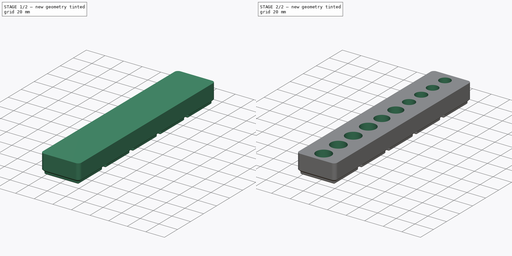
[diagram: build sequence overview — one tinted view per stage of 2, left to right]
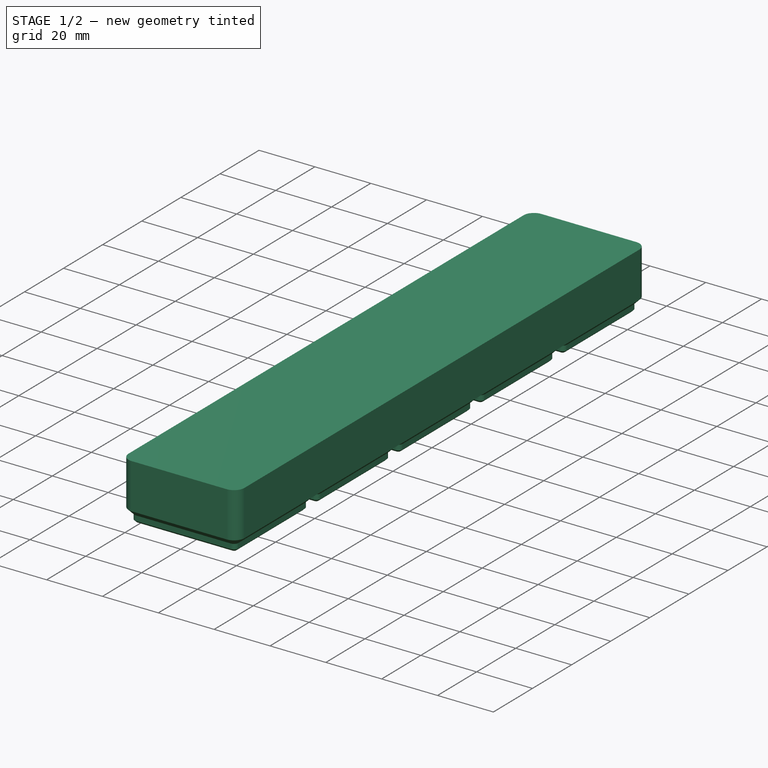
[diagram: stage 1 of 2 — iso view after this stage's code; geometry added in this stage tinted green]
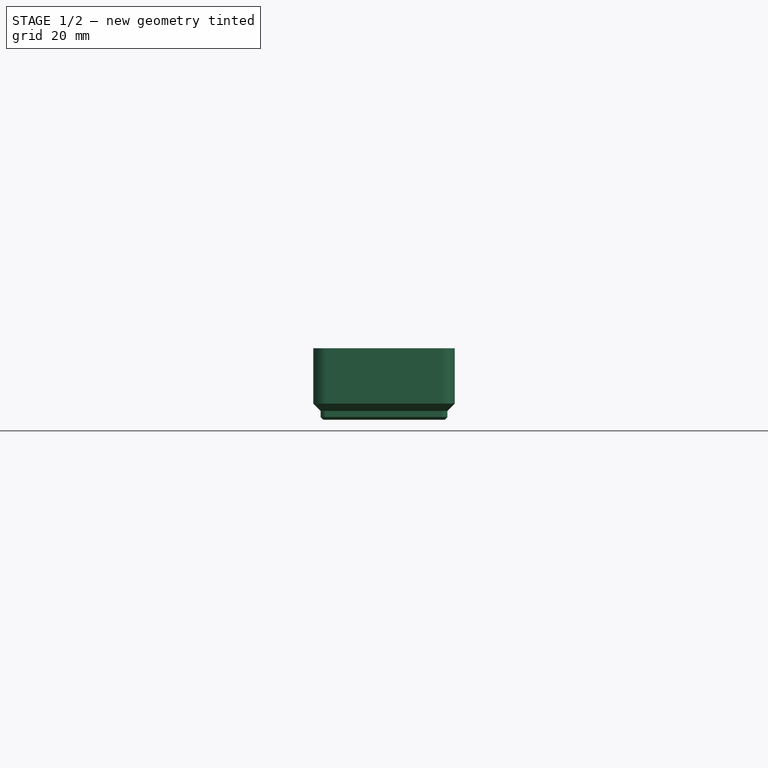
[diagram: stage 1 of 2 — front view after this stage's code; geometry added in this stage tinted green]
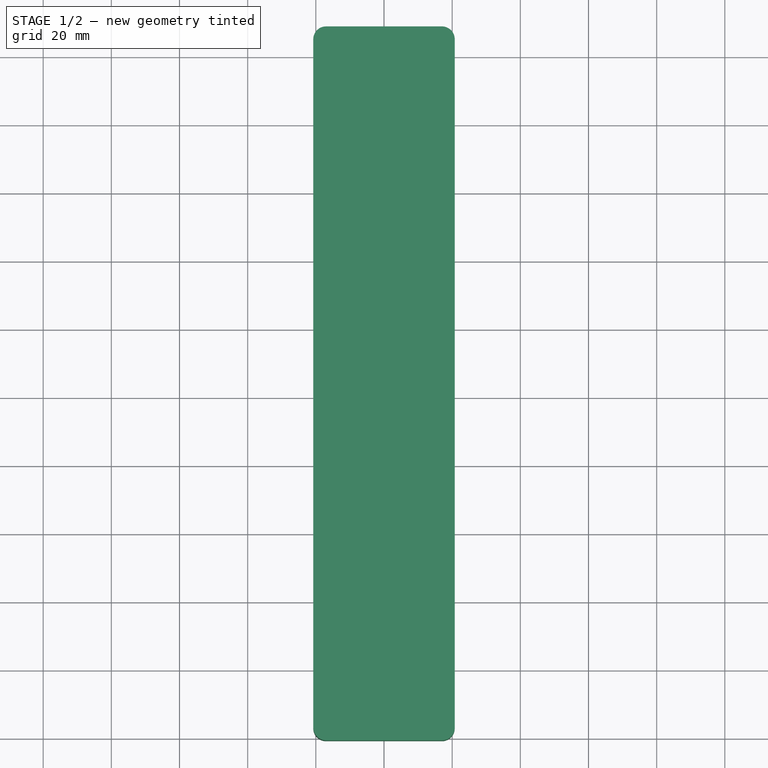
[diagram: stage 1 of 2 — top view after this stage's code; geometry added in this stage tinted green]
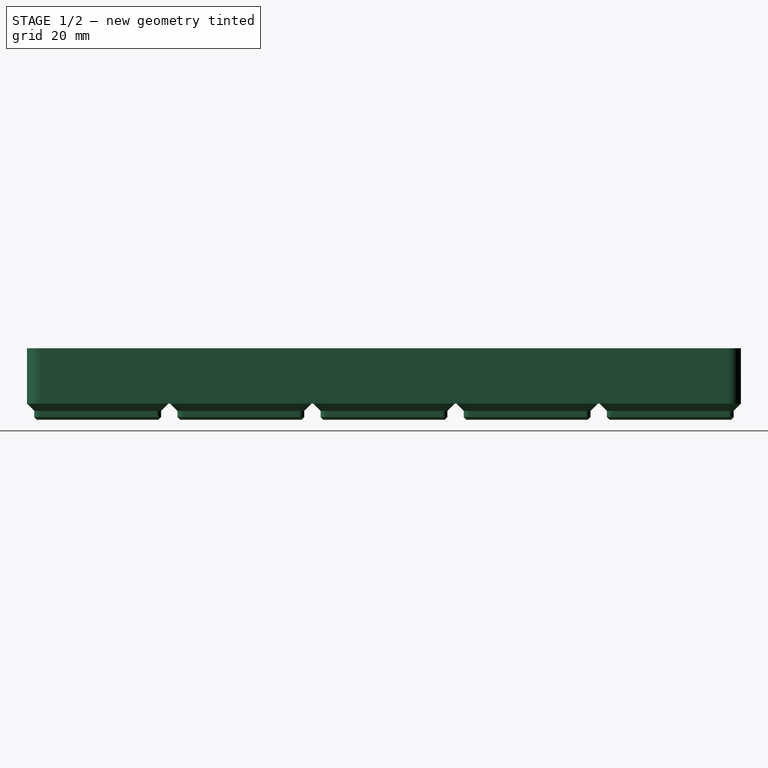
[diagram: stage 1 of 2 — right view after this stage's code; geometry added in this stage tinted green]
FCSTD DOCUMENT  (FreeCAD 0.21R33771 (Git))
Label: 3x5xShort
License: All rights reserved
LicenseURL: http://en.wikipedia.org/wiki/All_rights_reserved
objects: PartDesign::FeaturePython×1, Spreadsheet::Sheet×1, Sketcher::SketchObject×1, PartDesign::Pocket×1, PartDesign::Body×1
note: 5 computed .brp shape members not serialized (recipe doc carries the construction recipe); baked Part::Feature solids carry a one-line shape summary decoded from their .brp

FEATURE [PartDesign::FeaturePython] BinBlank  # WARN: FeaturePython — macro-defined, semantics opaque (R4)
  BaseProfileBottomChamfer = 0.8
  BaseProfileHeight = 4.75
  BaseProfileTopChamfer = 2.15
  BaseProfileVerticalSection = 1.8
  BinBottomRadius = 0.8
  BinOuterRadius = 3.75
  BinUnit = 41.5
  BinVerticalRadius = 1.6
  CustomHeight = 42
  GridSize = 42
  HeightUnitValue = 7
  HeightUnits = 3
  MagnetHoleDepth = 2.4
  MagnetHoleDiameter = 6.5
  MagnetHoleDistanceFromEdge = 8
  MagnetHoles = false
  NonStandardHeight = false
  ScrewHoleDepth = 6
  ScrewHoleDiameter = 3
  ScrewHoles = false
  SequentialBridgingLayerHeight = 0.2
  StackingLip = false
  StackingLipBottomChamfer = 0.7
  StackingLipTopChamfer = 1.5
  StackingLipTopLedge = 0.4
  StackingLipVerticalSection = 1.8
  Tolerance = 0.25
  TotalHeight = 21
  WallThickness = 1
  version = 0.5.0
  xGridUnits = 1
  xTotalWidth = 41.5
  yGridUnits = 5
  yTotalWidth = 209.5
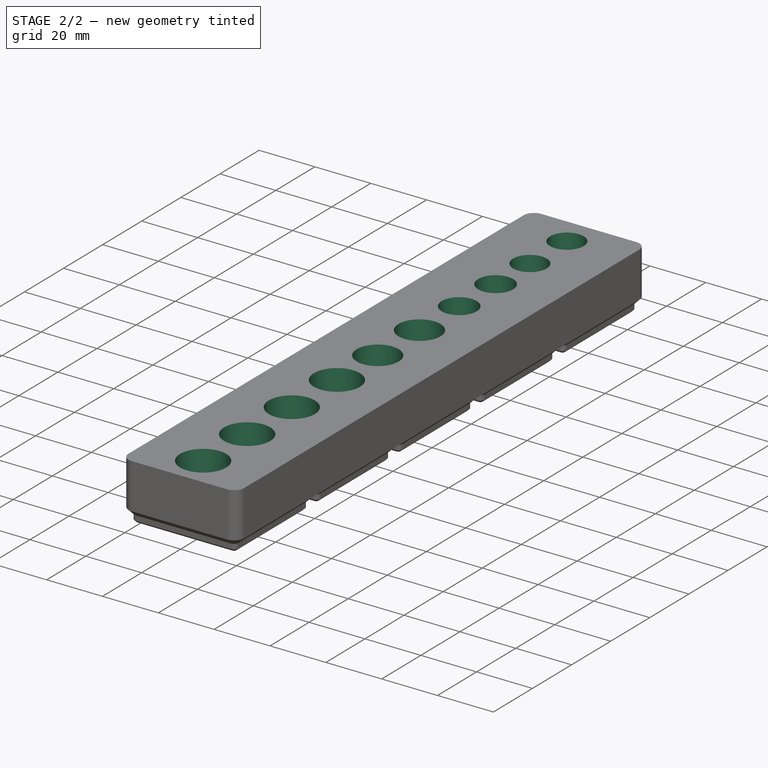
[diagram: stage 2 of 2 — iso view after this stage's code; geometry added in this stage tinted green]
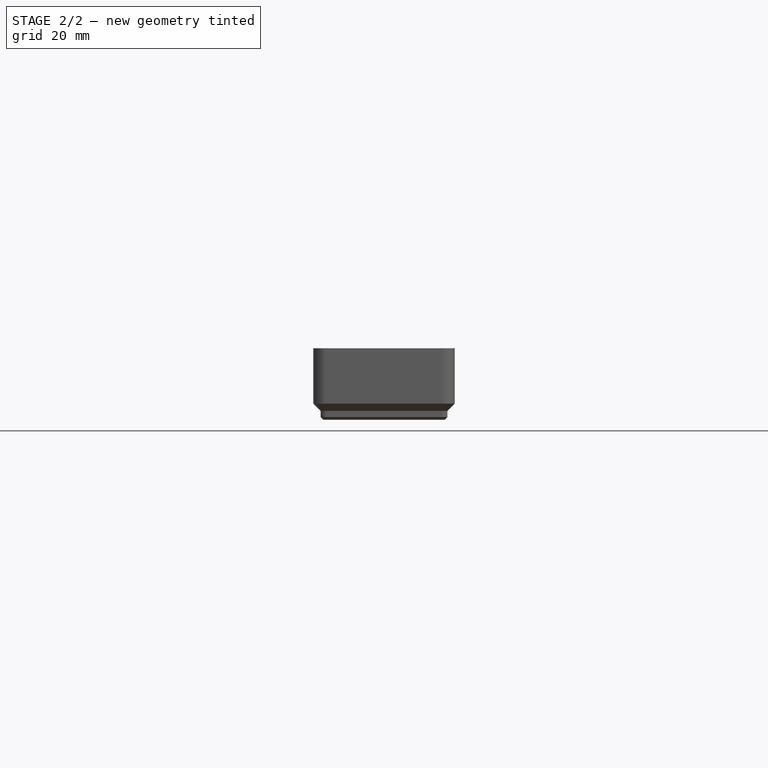
[diagram: stage 2 of 2 — front view after this stage's code; geometry added in this stage tinted green]
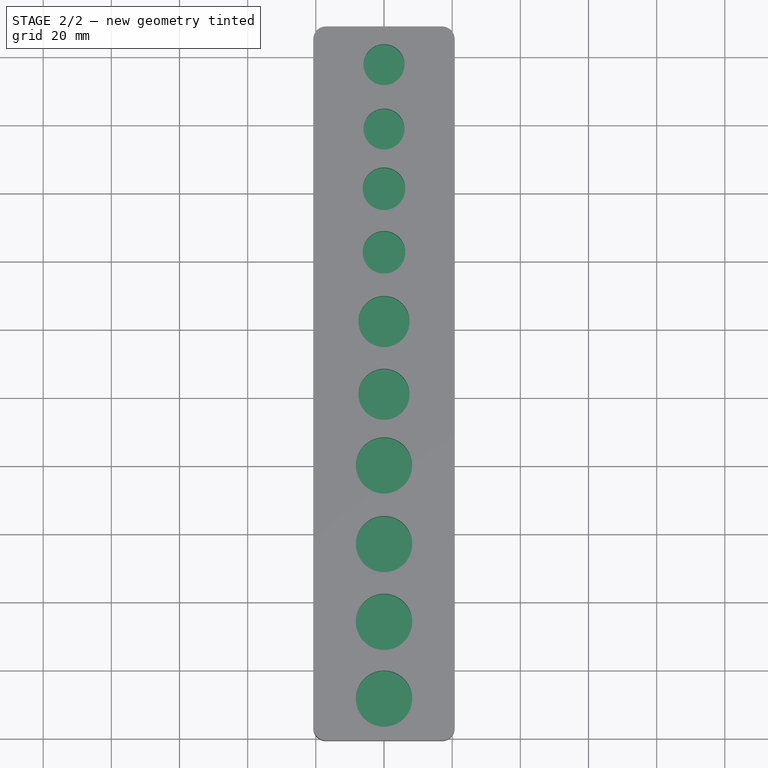
[diagram: stage 2 of 2 — top view after this stage's code; geometry added in this stage tinted green]
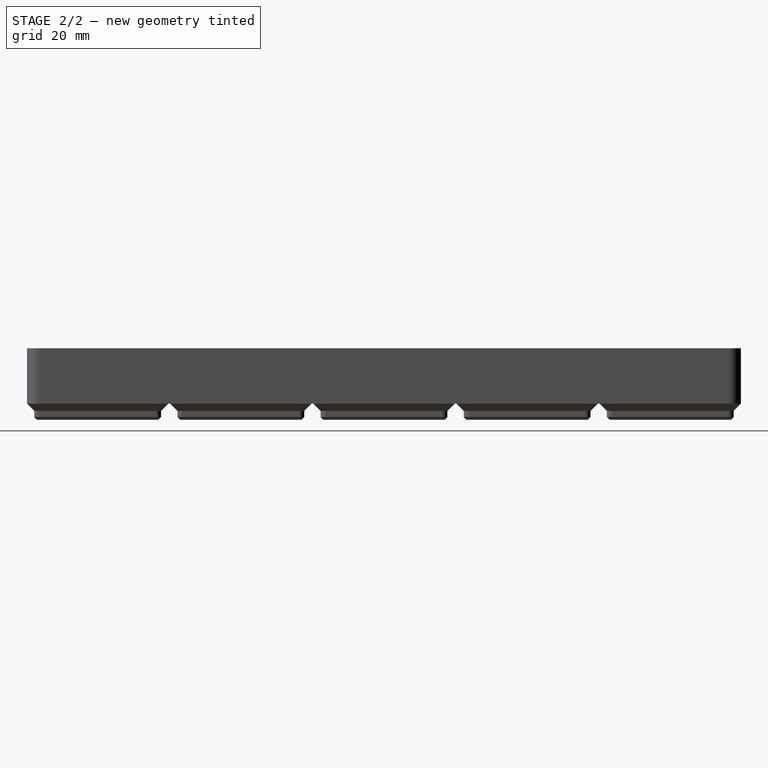
[diagram: stage 2 of 2 — right view after this stage's code; geometry added in this stage tinted green]
FEATURE [Spreadsheet::Sheet] Spreadsheet  label="sockets"
  cells = A1='Socket Internal Size; B1='Socket Outer Diamter; A2='four; B2(four)=12; A3='fourpointfive; B3(fourpointfive)=12; A4='six; B4(six)=12.5; A5='nine; B5(nine)=15; A6='ten; B6(ten)=15; A7='eleven; B7(eleven)=16.5; A8='twelve; B8(twelve)=16.5
FEATURE [Sketcher::SketchObject] Sketch
  FullyConstrained = false
  MapMode = 5
  Support = -> [BinBlank]
  expr: Constraints[11] = <<sockets>>.nine
  expr: Constraints[17] = <<sockets>>.ten
  expr: Constraints[18] = <<sockets>>.eleven
  expr: Constraints[19] = <<sockets>>.eleven
  expr: Constraints[20] = <<sockets>>.eleven
  expr: Constraints[21] = <<sockets>>.twelve
  expr: Constraints[3] = <<sockets>>.four
  expr: Constraints[5] = <<sockets>>.fourpointfive
  expr: Constraints[7] = <<sockets>>.six
  expr: Constraints[9] = <<sockets>>.six
  sketch-geometry (11):
    g0: LineSegment StartX=0 StartY=-28.5416 StartZ=0 EndX=0 EndY=200.715 EndZ=0
    g1: Circle CenterX=0 CenterY=177.555 CenterZ=0 NormalX=0 NormalY=0 NormalZ=1 AngleXU=0 Radius=6
    g2: Circle CenterX=0 CenterY=158.635 CenterZ=0 NormalX=0 NormalY=0 NormalZ=1 AngleXU=0 Radius=6
    g3: Circle CenterX=0 CenterY=141.107 CenterZ=0 NormalX=0 NormalY=0 NormalZ=1 AngleXU=0 Radius=6.25
    g4: Circle CenterX=0 CenterY=122.466 CenterZ=0 NormalX=0 NormalY=0 NormalZ=1 AngleXU=0 Radius=6.25
    g5: Circle CenterX=0 CenterY=102.156 CenterZ=0 NormalX=0 NormalY=0 NormalZ=1 AngleXU=0 Radius=7.5
    g6: Circle CenterX=0 CenterY=80.8004 CenterZ=0 NormalX=0 NormalY=0 NormalZ=1 AngleXU=0 Radius=7.5
    g7: Circle CenterX=0 CenterY=59.9336 CenterZ=0 NormalX=0 NormalY=0 NormalZ=1 AngleXU=0 Radius=8.25
    g8: Circle CenterX=0 CenterY=36.841 CenterZ=0 NormalX=0 NormalY=0 NormalZ=1 AngleXU=0 Radius=8.25
    g9: Circle CenterX=0 CenterY=14.0267 CenterZ=0 NormalX=0 NormalY=0 NormalZ=1 AngleXU=0 Radius=8.25
    g10: Circle CenterX=0 CenterY=-8.50946 CenterZ=0 NormalX=0 NormalY=0 NormalZ=1 AngleXU=0 Radius=8.25
  constraints (22):
    c: PointOnObject(g0,g-2)
    c: Vertical(g0)
    c: PointOnObject(g1,g0)
    c: Diameter(g1) = 12
    c: PointOnObject(g2,g0)
    c: Diameter(g2) = 12
    c: PointOnObject(g3,g0)
    c: Diameter(g3) = 12.5
    c: PointOnObject(g4,g0)
    c: Diameter(g4) = 12.5
    c: PointOnObject(g5,g0)
    c: Diameter(g5) = 15
    c: PointOnObject(g6,g0)
    c: PointOnObject(g7,g0)
    c: PointOnObject(g8,g0)
    c: PointOnObject(g9,g0)
    c: PointOnObject(g10,g0)
    c: Diameter(g6) = 15
    c: Diameter(g7) = 16.5
    c: Diameter(g8) = 16.5
    c: Diameter(g9) = 16.5
    c: Diameter(g10) = 16.5
FEATURE [PartDesign::Pocket] Pocket
  BaseFeature = -> BinBlank
  Direction = (0,0,-1)
  Length = 10
  Length2 = 5
  Profile = -> Sketch
  ReferenceAxis = -> Sketch [N_Axis]
  Type = 0
FEATURE [PartDesign::Body] Body
  Group = -> [BinBlank,Sketch,Pocket]
  Origin = -> Origin
  Tip = -> Pocket
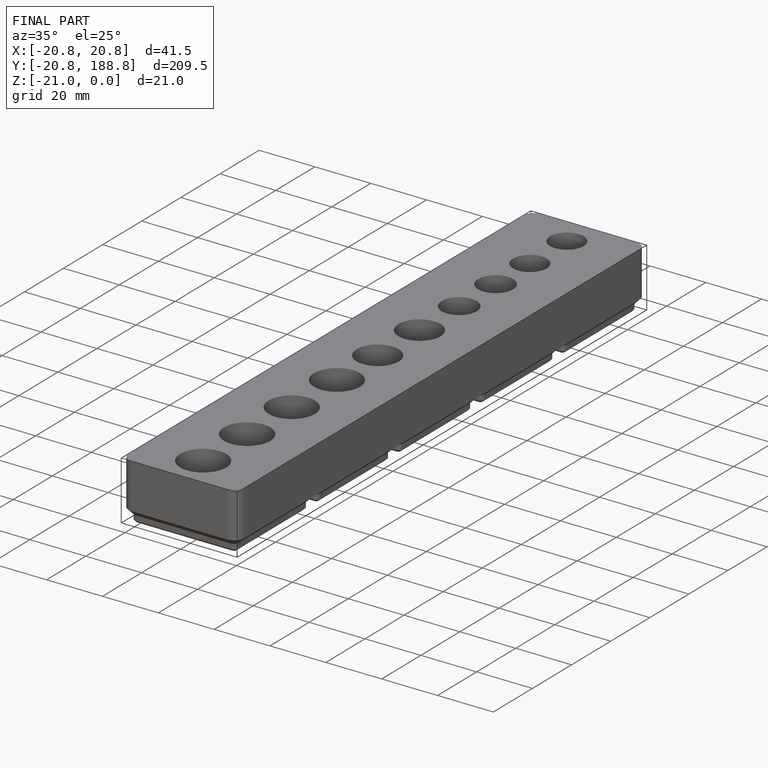
[diagram: finished part — iso view with bounding-box wireframe]
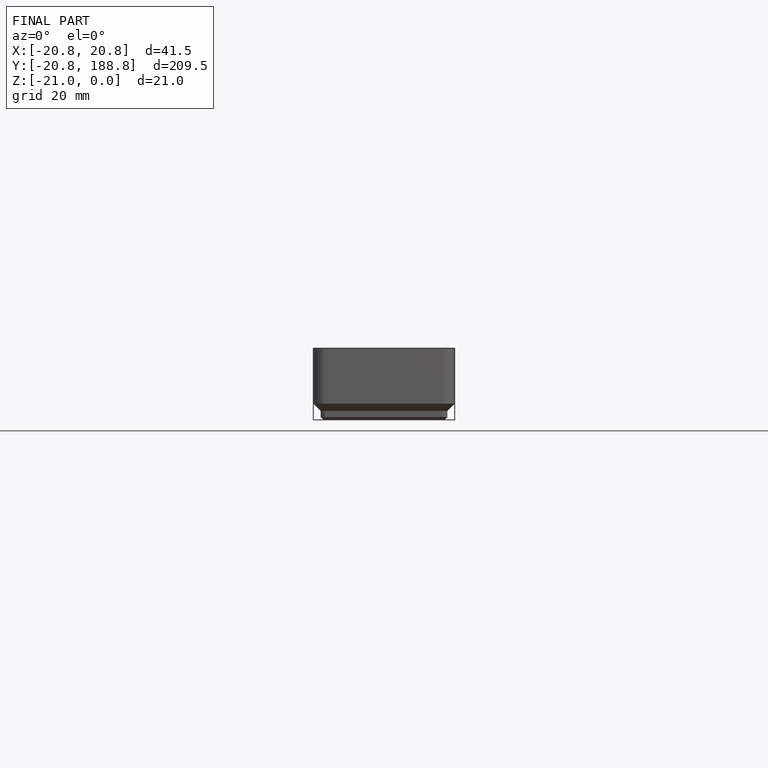
[diagram: finished part — front view with bounding-box wireframe]
